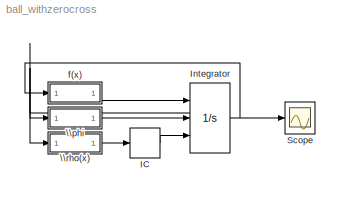
MODEL ball_withzerocross
KIND model
BLOCK [InitialCondition] IC
  SID = 1
  Value = [10;5]
BLOCK [Integrator] Integrator
  ExternalReset = rising
  InitialConditionSource = external
  Ports = [3, 1, 0, 0, 1]
  SID = 2
  ShowStatePort = on
BLOCK [Scope] Scope
  NumInputPorts = 1
  Ports = [1]
  SID = 3
  ScopeSpecificationString = Simulink.scopes.TimeScopeBlockCfg('CurrentConfiguration', extmgr.ConfigurationSet(extmgr.Configuration('Core','General UI',true),extmgr.Configuration('Core','Source UI',true),extmgr.Configuration('Sources','WiredSimulink',true,'DataLoggingSaveFormat','StructureWithTime','DataLoggingLimitDataPoints',true,'DataLoggingDecimation','1','DataLoggingDecimateData',true),extmgr.Configuration('Visuals','Tim...<+1711ch>
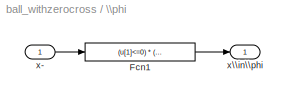
BLOCK [SubSystem] \\phi
  Description = f(x)
  Ports = [1, 1]
  RequestExecContextInheritance = off
  SID = 4
  Variant = off
BLOCK [Fcn] \\phi/Fcn1
  Expr = (u[1]<=0) * (u[2]< 0)
  SID = 6
BLOCK [Inport] \\phi/x-
  IconDisplay = Port number
  SID = 5
BLOCK [Outport] \\phi/x\\in\\phi
  IconDisplay = Port number
  SID = 7
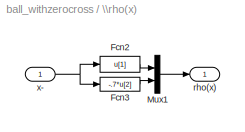
BLOCK [SubSystem] \\rho(x)
  Description = f(x)
  Ports = [1, 1]
  RequestExecContextInheritance = off
  SID = 8
  Variant = off
BLOCK [Fcn] \\rho(x)/Fcn2
  Expr = u[1]
  SID = 10
BLOCK [Fcn] \\rho(x)/Fcn3
  Expr = -.7*u[2]
  SID = 11
BLOCK [Mux] \\rho(x)/Mux1
  DisplayOption = bar
  Inputs = 2
  Ports = [2, 1]
  SID = 12
BLOCK [Outport] \\rho(x)/rho(x)
  IconDisplay = Port number
  SID = 13
BLOCK [Inport] \\rho(x)/x-
  IconDisplay = Port number
  SID = 9
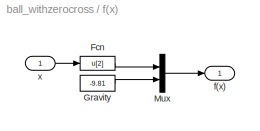
BLOCK [SubSystem] f(x)
  Description = f(x)
  Ports = [1, 1]
  RequestExecContextInheritance = off
  SID = 14
  Variant = off
BLOCK [Fcn] f(x)/Fcn
  Expr = u[2]
  SID = 16
BLOCK [Constant] f(x)/Gravity
  SID = 17
  Value = -9.81
BLOCK [Mux] f(x)/Mux
  DisplayOption = bar
  Inputs = 2
  Ports = [2, 1]
  SID = 18
BLOCK [Outport] f(x)/f(x)
  IconDisplay = Port number
  SID = 19
BLOCK [Inport] f(x)/x
  IconDisplay = Port number
  SID = 15
LINE IC:1 -> Integrator:3
NET Integrator:1 -> Scope:1, f(x):1
NET Integrator:state -> \\phi:1, \\rho(x):1
LINE \\phi/Fcn1:1 -> \\phi/x\\in\\phi:1
LINE \\phi/x-:1 -> \\phi/Fcn1:1
LINE \\phi:1 -> Integrator:2
LINE \\rho(x)/Fcn2:1 -> \\rho(x)/Mux1:1
LINE \\rho(x)/Fcn3:1 -> \\rho(x)/Mux1:2
LINE \\rho(x)/Mux1:1 -> \\rho(x)/rho(x):1
NET \\rho(x)/x-:1 -> \\rho(x)/Fcn2:1, \\rho(x)/Fcn3:1
LINE \\rho(x):1 -> IC:1
LINE f(x)/Fcn:1 -> f(x)/Mux:1
LINE f(x)/Gravity:1 -> f(x)/Mux:2
LINE f(x)/Mux:1 -> f(x)/f(x):1
LINE f(x)/x:1 -> f(x)/Fcn:1
LINE f(x):1 -> Integrator:1
note: NET lines group one-source signal fan-out (src -> all destinations, sorted); 1:1 wires keep LINE
